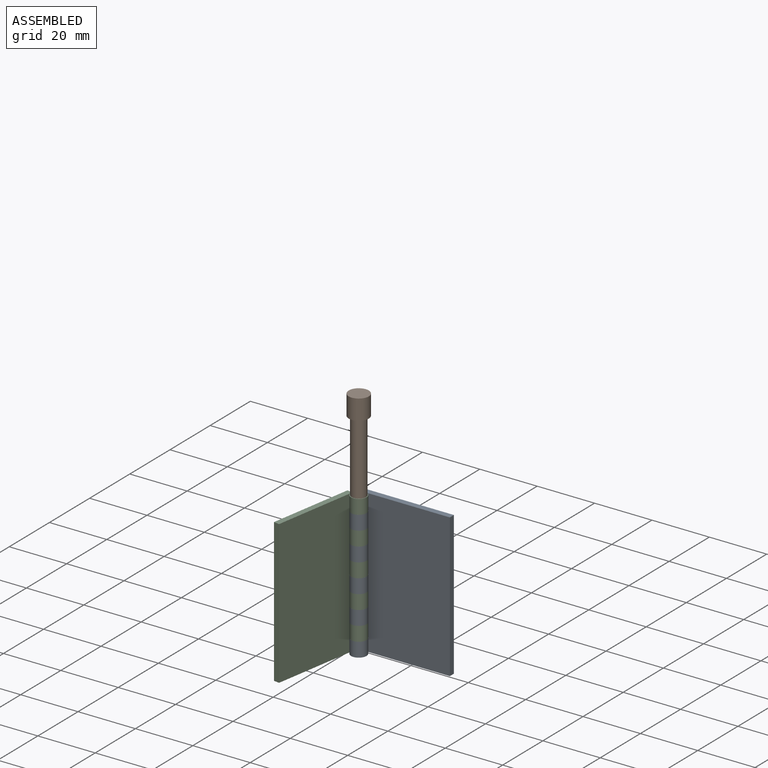
[diagram: assembled view]
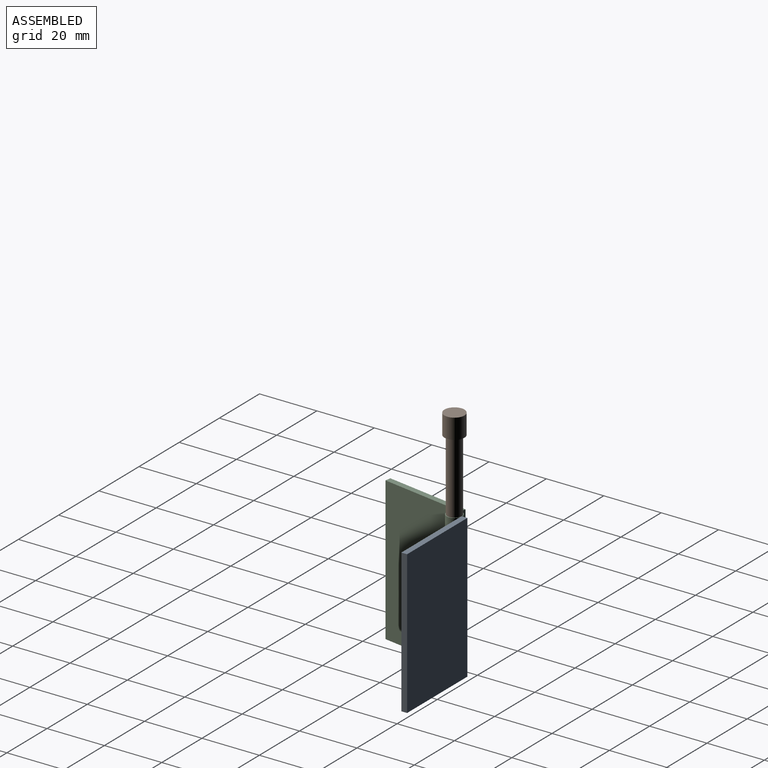
[diagram: assembled view, second angle]
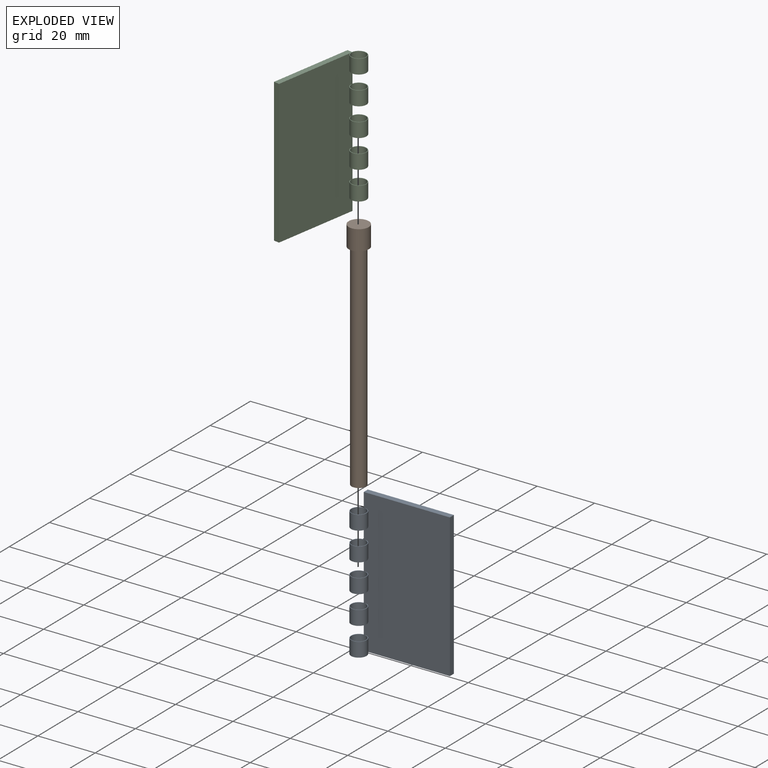
[diagram: exploded view]
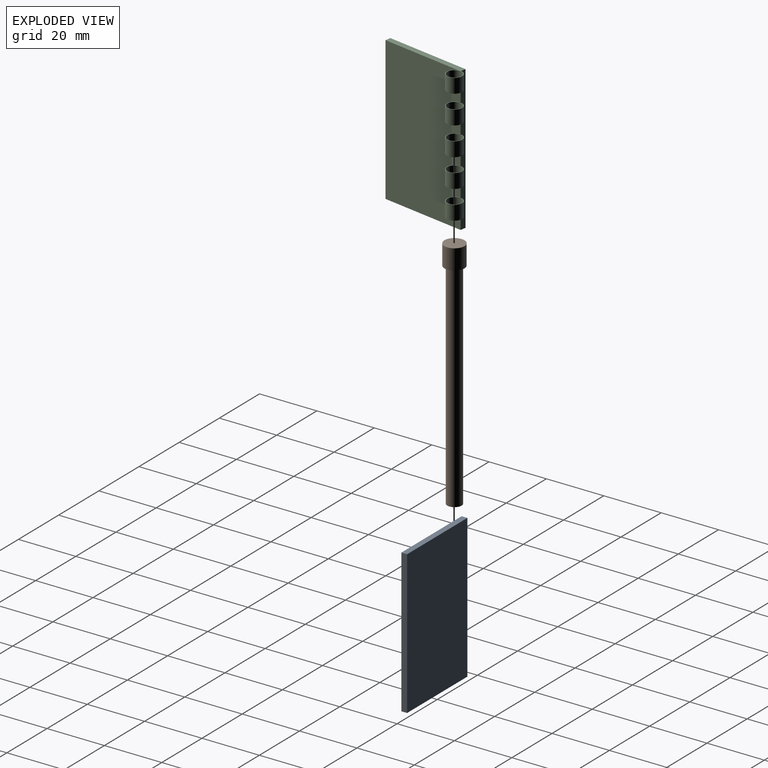
[diagram: exploded view, second angle]
ASSEMBLY  parts=3 mates=2
PART A: 25 faces, bbox 32.7x7.2x50 mm
  f0: plane 50x2mm, normal (1,0,0), area 95.2mm2, adj f1,f2,f4,f5,f6,f7,f8,f10
  f1: plane 50x30mm, normal (0,-1,0), area 1475mm2, adj f0,f2,f3,f4,f6,f7,f8,f10
  f2: plane 32.69x7.19mm, normal (0,0,1), area 63mm2, adj f0,f1,f3,f5,f10,f12
  f3: plane 50x2mm, normal (-1,0,0), area 100mm2, adj f1,f2,f4,f5
  f4: plane 30x2mm, normal (0,0,-1), area 60mm2, adj f0,f1,f3,f5
  f5: plane 50x30mm, normal (0,1,0), area 1500mm2, adj f0,f2,f3,f4
  f6: plane 5.39x5.39mm, normal (0,0,1), area 3mm2, adj f0,f1,f7,f9
  f7: cylinder r=2.69mm len=5.39mm, axis (0,0,-1), area 79.5mm2, adj f0,f1,f6,f8
  f8: plane 5.39x5.39mm, normal (0,0,-1), area 3mm2, adj f0,f1,f7,f9
  f9: cylinder r=2.5mm len=5mm, axis (0,0,-1), area 78.5mm2, adj f6,f8
  f10: cylinder r=2.69mm len=5.39mm, axis (0,0,-1), area 79.5mm2, adj f0,f1,f2,f11
  f11: plane 5.39x5.39mm, normal (0,0,-1), area 3mm2, adj f0,f1,f10,f12
  f12: cylinder r=2.5mm len=5mm, axis (0,0,-1), area 78.5mm2, adj f2,f11
  f13: plane 5.39x5.39mm, normal (0,0,1), area 3mm2, adj f0,f1,f14,f16
  f14: cylinder r=2.69mm len=5.39mm, axis (0,0,-1), area 79.5mm2, adj f0,f1,f13,f15
  f15: plane 5.39x5.39mm, normal (0,0,-1), area 3mm2, adj f0,f1,f14,f16
  f16: cylinder r=2.5mm len=5mm, axis (0,0,-1), area 78.5mm2, adj f13,f15
  f17: plane 5.39x5.39mm, normal (0,0,1), area 3mm2, adj f0,f1,f18,f20
  f18: cylinder r=2.69mm len=5.39mm, axis (0,0,-1), area 79.5mm2, adj f0,f1,f17,f19
  f19: plane 5.39x5.39mm, normal (0,0,-1), area 3mm2, adj f0,f1,f18,f20
  f20: cylinder r=2.5mm len=5mm, axis (0,0,-1), area 78.5mm2, adj f17,f19
  f21: cylinder r=2.69mm len=5.39mm, axis (0,0,-1), area 79.5mm2, adj f0,f1,f22,f24
  f22: plane 5.39x5.39mm, normal (0,0,-1), area 3mm2, adj f0,f1,f21,f23
  f23: cylinder r=2.5mm len=5mm, axis (0,0,-1), area 78.5mm2, adj f22,f24
  f24: plane 5.39x5.39mm, normal (0,0,1), area 3mm2, adj f0,f1,f21,f23
PART B: 5 faces, bbox 7x7x82 mm
  f0: cylinder r=2.5mm len=75mm, axis (0,0,-1), area 1178.1mm2, adj f1,f4
  f1: plane 5x5mm, normal (0,0,-1), area 19.6mm2, adj f0
  f2: cylinder r=3.5mm len=7mm, axis (0,0,-1), area 153.9mm2, adj f3,f4
  f3: plane 7x7mm, normal (0,0,1), area 38.5mm2, adj f2
  f4: plane 7x7mm, normal (0,0,-1), area 18.8mm2, adj f0,f2
PART C: same geometry as A
PLACE A rot(axis=(0,1,0),180deg) t=(-15,-2,0)mm
PLACE B rot(axis=(0,0,1),155deg) t=(-15,-4.5,-25)mm
PLACE C rot(axis=(0,0,1),80.6deg) t=(-17.47,-4.09,0)mm
MATE cylindrical B.f0 <-> A.f7  axis (0,0,-1) through (-15,-4.5,-25)mm
MATE revolute C.f7 <-> A.f7  axis (0,0,-1) through (-15,-4.5,-20)mm
